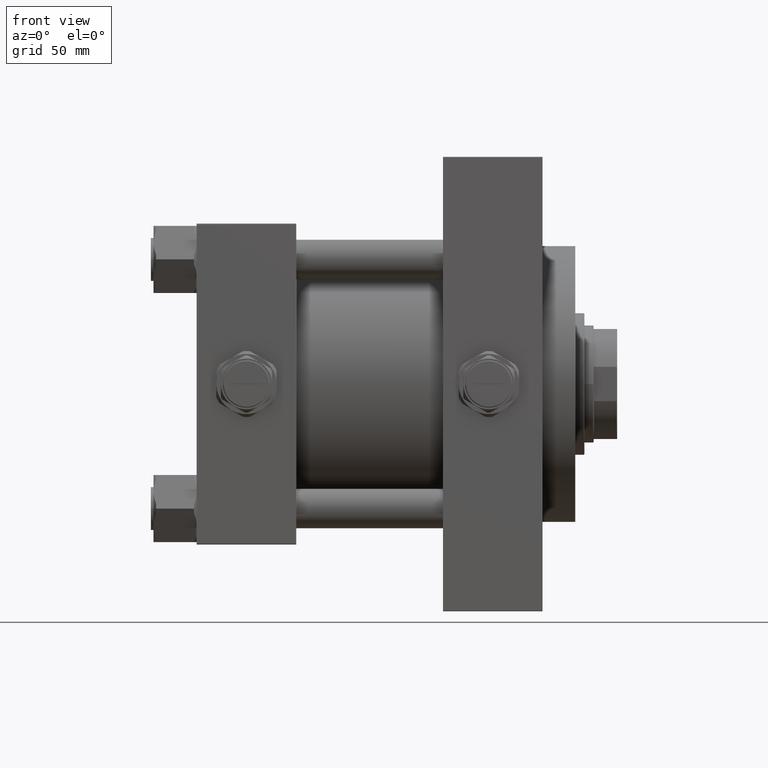
[diagram: clean part render]
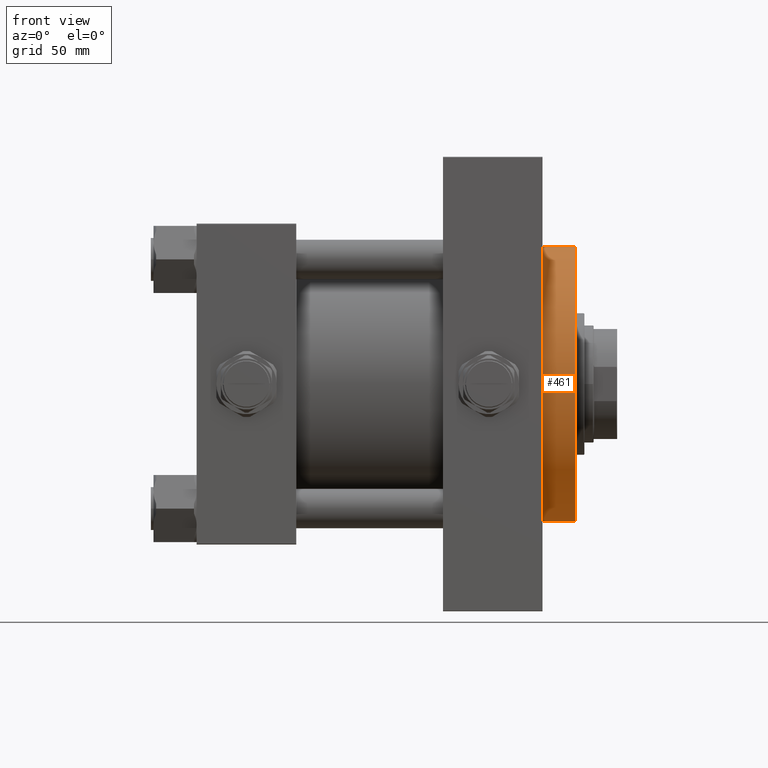
[diagram: same view with one face highlighted and labeled with its STEP entity id]
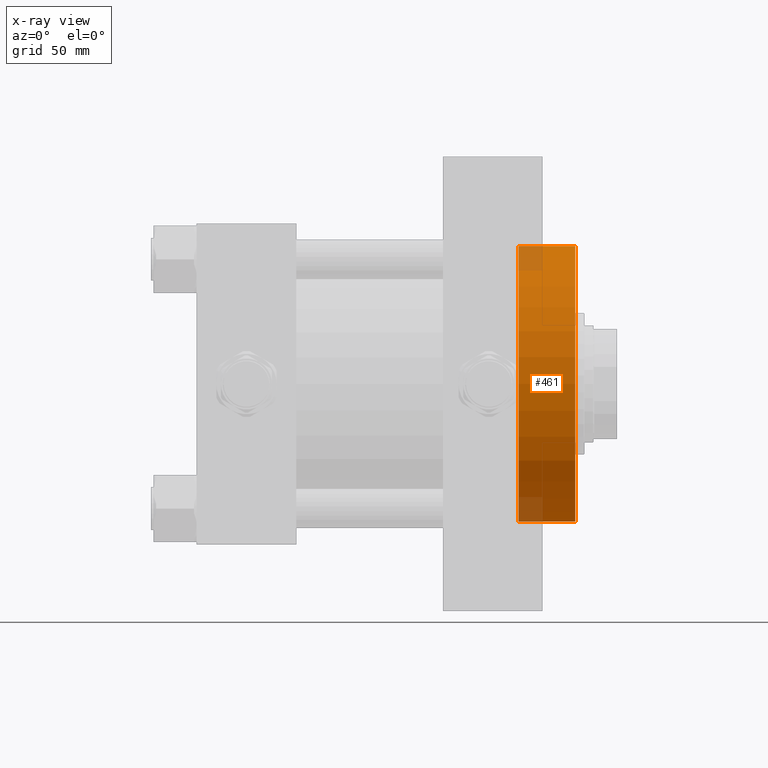
[diagram: x-ray of the same camera — body ghosted, the highlighted face saturated]
A machine part, front view. The second image highlights one B-rep face of the part: STEP entity #461.
The next image is the same camera in x-ray: the body ghosted, the highlighted face saturated — about 7% of this face is hidden behind the body in this view.
In plain terms, the highlighted cylindrical surface (partial cylindrical patch) has radius 105.25 mm, axis along (-1, 0, 0).
Its self-contained STEP definition (entity closure, byte-faithful):
#461 = ADVANCED_FACE ( 'NONE', ( #47135 ), #5172, .T. ) ;
#667 = DIRECTION ( 'NONE',  ( -0.000000000000000000, -0.000000000000000000, -1.000000000000000000 ) ) ;
#993 = VERTEX_POINT ( 'NONE', #46422 ) ;
#2844 = DIRECTION ( 'NONE',  ( 1.000000000000000000, 0.000000000000000000, 0.000000000000000000 ) ) ;
#3253 = EDGE_CURVE ( 'NONE', #993, #19977, #37335, .T. ) ;
#5172 = CYLINDRICAL_SURFACE ( 'NONE', #42136, 105.2500000000000000 ) ;
#5308 = ORIENTED_EDGE ( 'NONE', *, *, #48294, .F. ) ;
#6766 = ORIENTED_EDGE ( 'NONE', *, *, #40066, .F. ) ;
#7887 = VECTOR ( 'NONE', #48046, 1000.000000000000000 ) ;
#12067 = VERTEX_POINT ( 'NONE', #23398 ) ;
#13344 = DIRECTION ( 'NONE',  ( 1.000000000000000000, 0.000000000000000000, 0.000000000000000000 ) ) ;
#15976 = DIRECTION ( 'NONE',  ( -1.000000000000000000, 0.000000000000000000, 0.000000000000000000 ) ) ;
#19977 = VERTEX_POINT ( 'NONE', #41059 ) ;
#21292 = VERTEX_POINT ( 'NONE', #47026 ) ;
#23398 = CARTESIAN_POINT ( 'NONE',  ( -105.2500000000000000, 0.000000000000000000, 0.000000000000000000 ) ) ;
#26999 = EDGE_LOOP ( 'NONE', ( #6766, #33339, #44534, #5308 ) ) ;
#29984 = CARTESIAN_POINT ( 'NONE',  ( 0.000000000000000000, 0.000000000000000000, 0.000000000000000000 ) ) ;
#31559 = CARTESIAN_POINT ( 'NONE',  ( 0.000000000000000000, 0.000000000000000000, 43.25999999999999801 ) ) ;
#33339 = ORIENTED_EDGE ( 'NONE', *, *, #3253, .T. ) ;
#33394 = AXIS2_PLACEMENT_3D ( 'NONE', #40237, #47787, #13344 ) ;
#33804 = CARTESIAN_POINT ( 'NONE',  ( 105.2500000000000000, 1.288940756102589170E-14, 43.25999999999999801 ) ) ;
#37335 = LINE ( 'NONE', #33804, #48677 ) ;
#39934 = CIRCLE ( 'NONE', #47186, 105.2500000000000000 ) ;
#40066 = EDGE_CURVE ( 'NONE', #993, #21292, #43026, .T. ) ;
#40237 = CARTESIAN_POINT ( 'NONE',  ( 0.000000000000000000, 0.000000000000000000, 43.25999999999999801 ) ) ;
#41059 = CARTESIAN_POINT ( 'NONE',  ( 105.2500000000000000, 1.288940756102589170E-14, 0.000000000000000000 ) ) ;
#42136 = AXIS2_PLACEMENT_3D ( 'NONE', #31559, #667, #15976 ) ;
#43026 = CIRCLE ( 'NONE', #33394, 105.2500000000000000 ) ;
#44521 = CARTESIAN_POINT ( 'NONE',  ( -105.2500000000000000, 0.000000000000000000, 43.25999999999999801 ) ) ;
#44534 = ORIENTED_EDGE ( 'NONE', *, *, #47219, .T. ) ;
#44772 = LINE ( 'NONE', #44521, #7887 ) ;
#44903 = DIRECTION ( 'NONE',  ( -0.000000000000000000, -0.000000000000000000, -1.000000000000000000 ) ) ;
#46422 = CARTESIAN_POINT ( 'NONE',  ( 105.2500000000000000, 1.288940756102589170E-14, 43.25999999999999801 ) ) ;
#47026 = CARTESIAN_POINT ( 'NONE',  ( -105.2500000000000000, 0.000000000000000000, 43.25999999999999801 ) ) ;
#47135 = FACE_OUTER_BOUND ( 'NONE', #26999, .T. ) ;
#47186 = AXIS2_PLACEMENT_3D ( 'NONE', #29984, #48590, #2844 ) ;
#47219 = EDGE_CURVE ( 'NONE', #19977, #12067, #39934, .T. ) ;
#47787 = DIRECTION ( 'NONE',  ( 0.000000000000000000, 0.000000000000000000, 1.000000000000000000 ) ) ;
#48046 = DIRECTION ( 'NONE',  ( -0.000000000000000000, -0.000000000000000000, -1.000000000000000000 ) ) ;
#48294 = EDGE_CURVE ( 'NONE', #21292, #12067, #44772, .T. ) ;
#48590 = DIRECTION ( 'NONE',  ( 0.000000000000000000, 0.000000000000000000, 1.000000000000000000 ) ) ;
#48677 = VECTOR ( 'NONE', #44903, 1000.000000000000000 ) ;